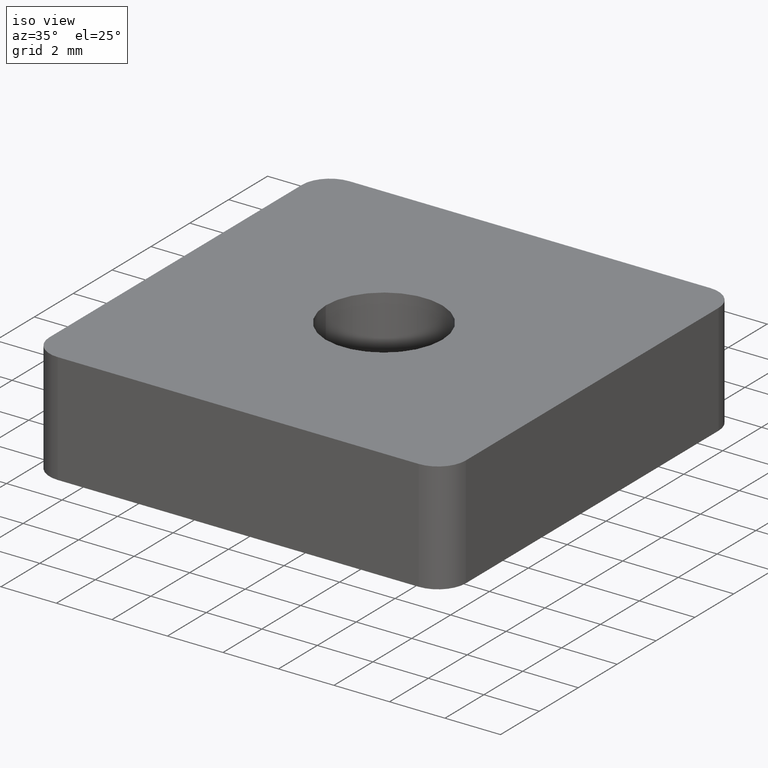
[diagram: clean part render]
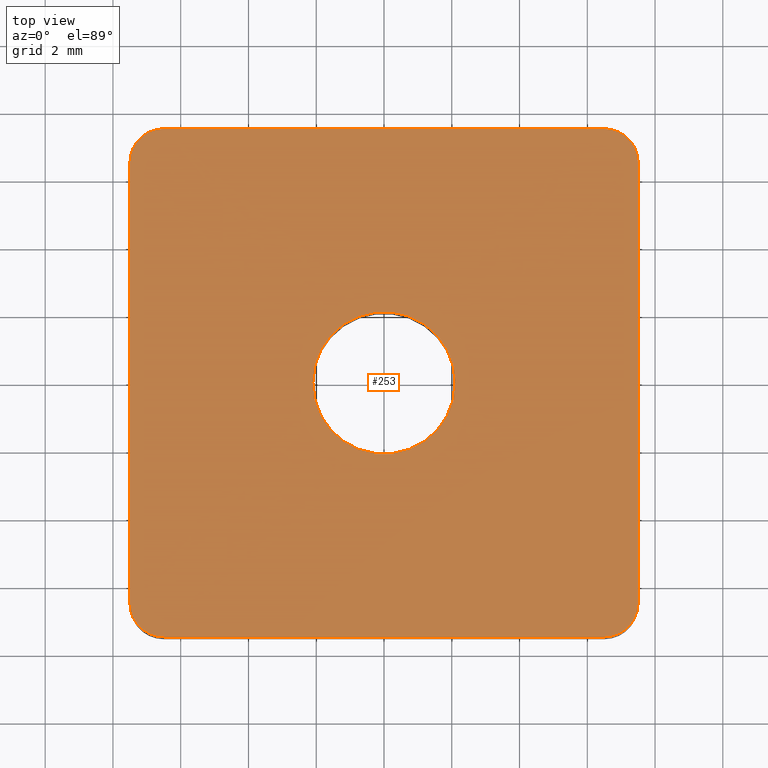
[diagram: tour spotlight — one face highlighted and labeled with its STEP entity id]
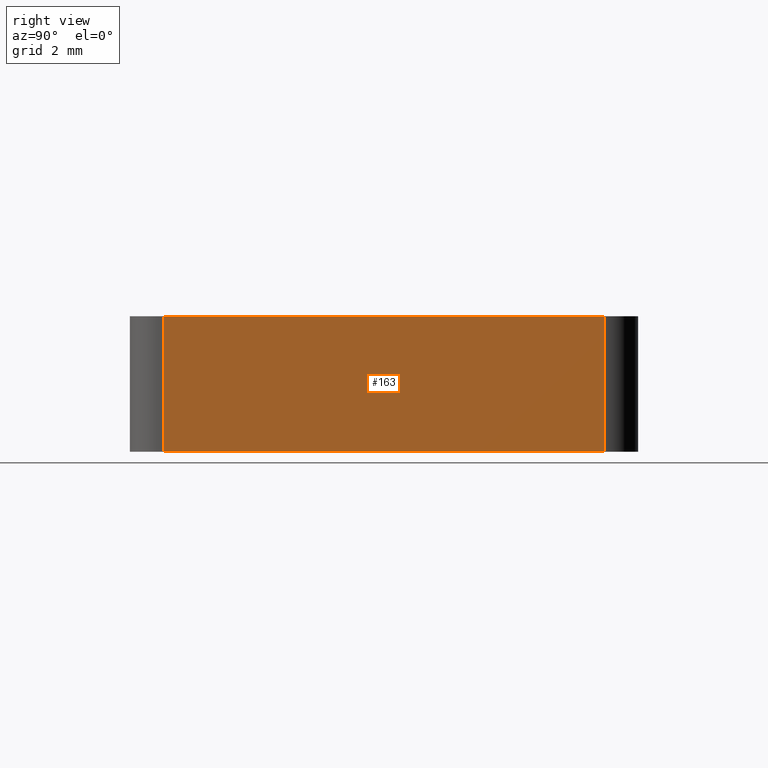
[diagram: tour spotlight — one face highlighted and labeled with its STEP entity id]
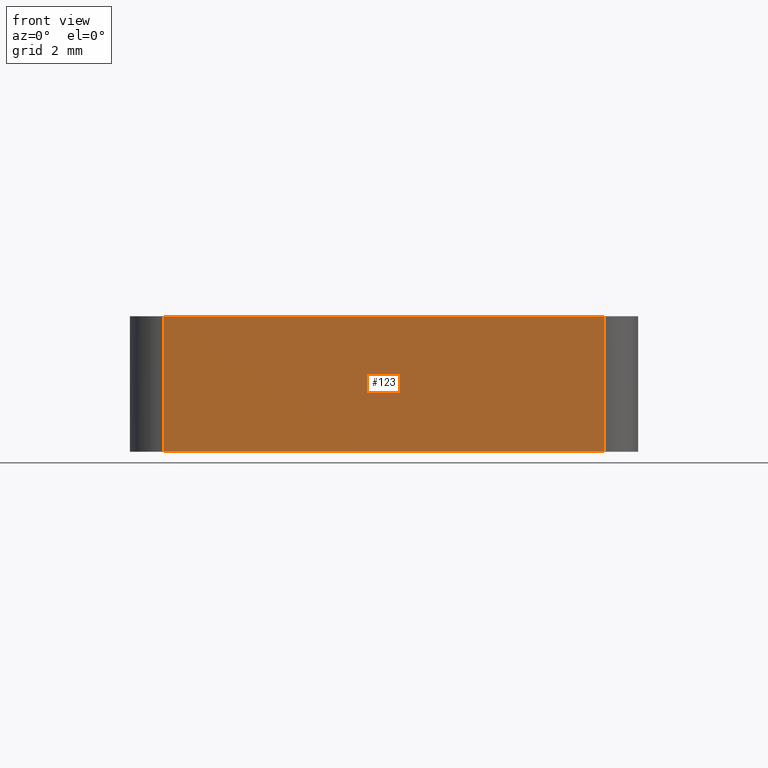
[diagram: tour spotlight — one face highlighted and labeled with its STEP entity id]
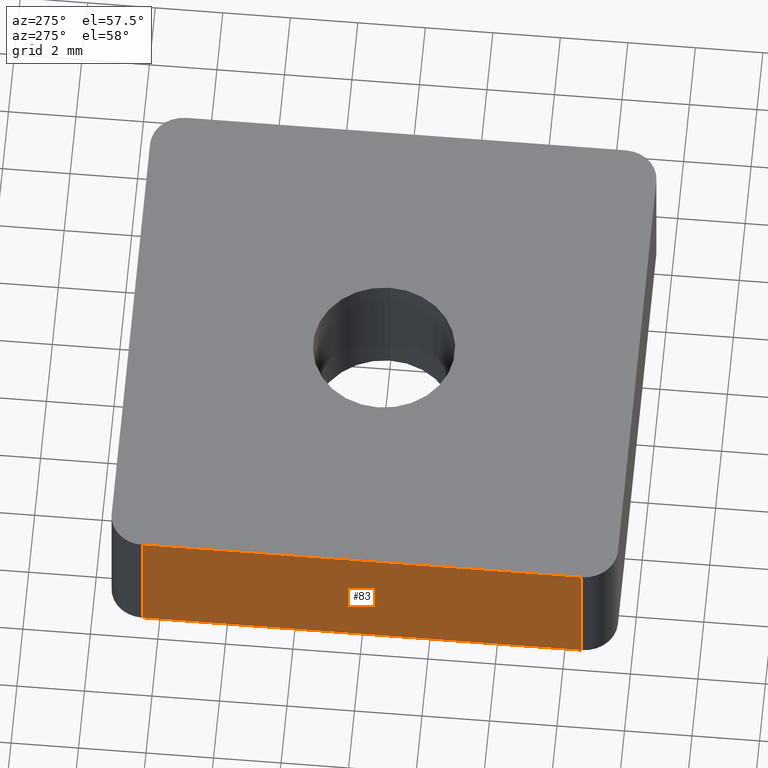
[diagram: tour spotlight — one face highlighted and labeled with its STEP entity id]
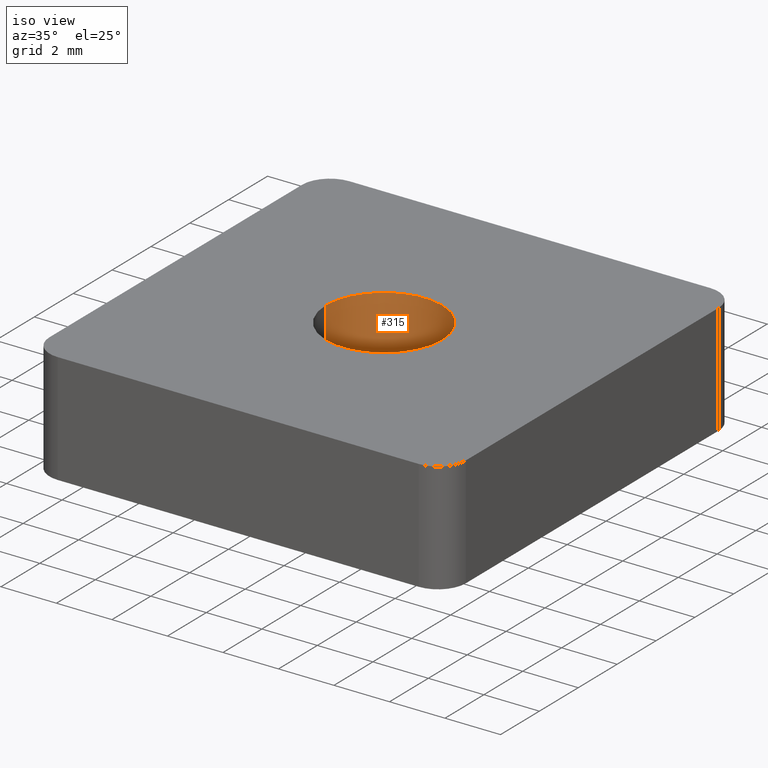
[diagram: tour spotlight — one face highlighted and labeled with its STEP entity id]
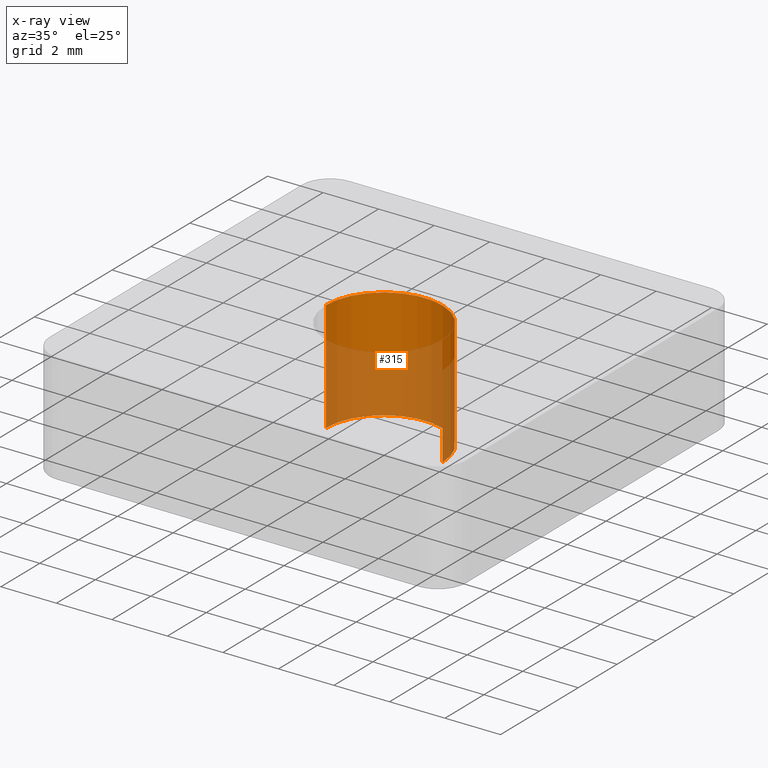
[diagram: x-ray of the same camera — body ghosted, this tour face saturated]
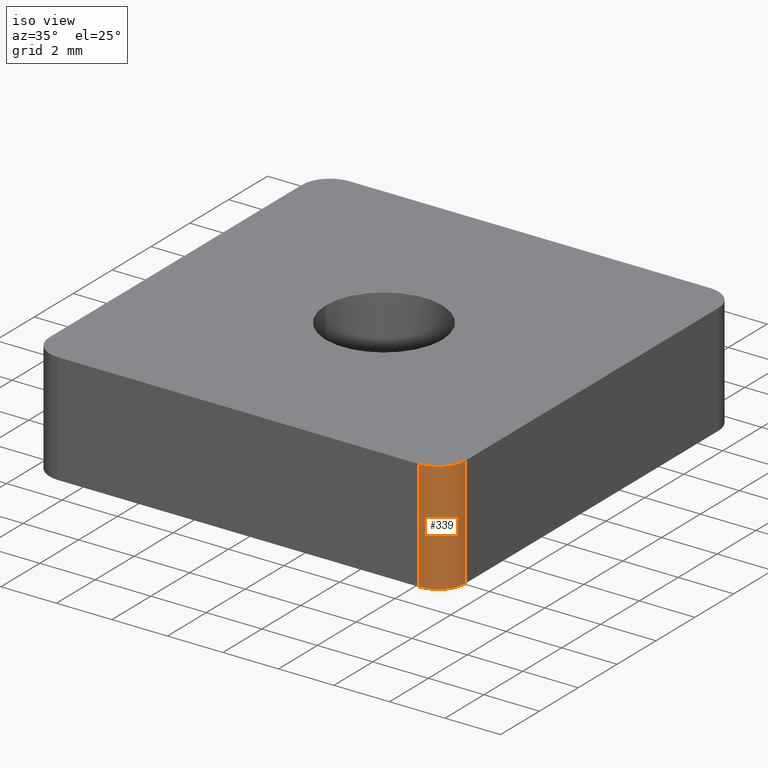
[diagram: tour spotlight — one face highlighted and labeled with its STEP entity id]
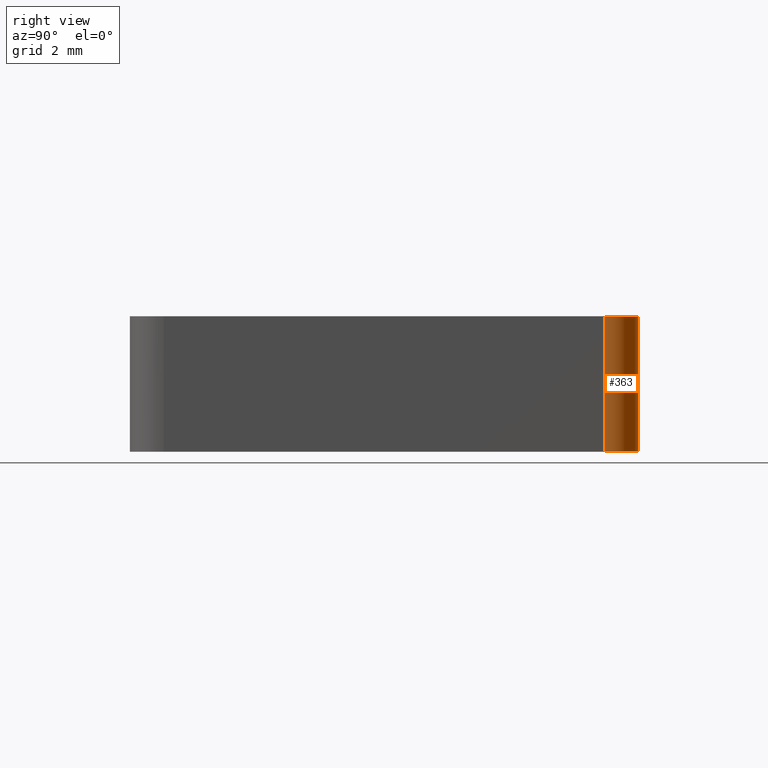
[diagram: tour spotlight — one face highlighted and labeled with its STEP entity id]
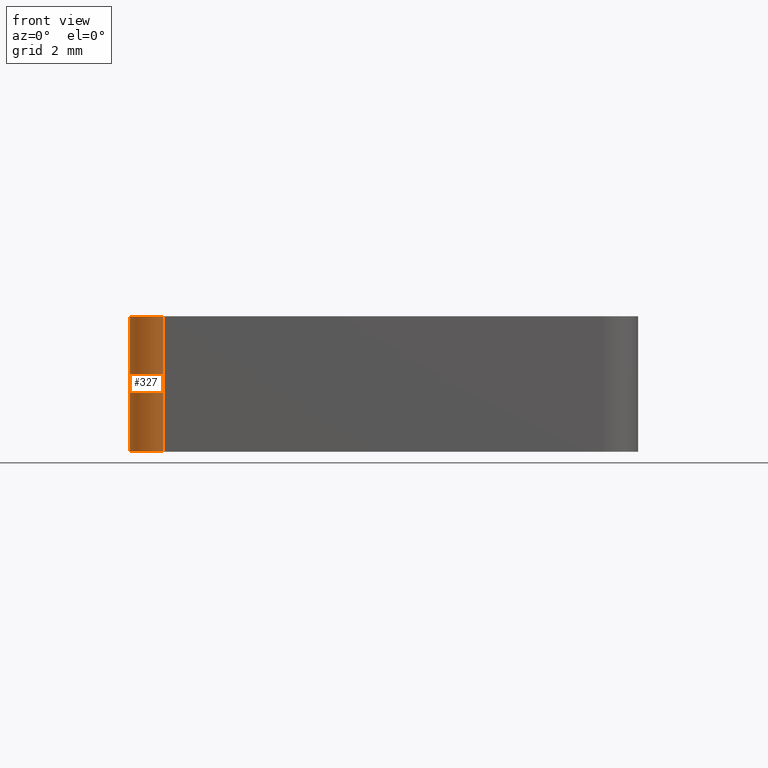
[diagram: tour spotlight — one face highlighted and labeled with its STEP entity id]
A machine part: a face-by-face anatomy tour. The part has 12 B-rep faces; the first image is the clean iso view, then the 8 largest visible faces are spotlighted one at a time (largest first), each with its STEP entity span.

Face 1 — top view, entity #253. In plain terms, the highlighted planar face has unit normal (0, 0, 1).
Definition (entity closure, byte-faithful):
#18=CARTESIAN_POINT('',(-2.100000000000001,0.0,1.110223E-016));
#19=VERTEX_POINT('',#18);
#26=CARTESIAN_POINT('',(2.100000000000001,0.0,1.110223E-016));
#27=VERTEX_POINT('',#26);
#28=CARTESIAN_POINT('',(-5.551115E-017,0.0,1.110223E-016));
#29=DIRECTION('',(0.0,0.0,1.0));
#30=DIRECTION('',(0.0,1.0,0.0));
#31=AXIS2_PLACEMENT_3D('',#28,#29,#30);
#32=CIRCLE('',#31,2.099999999999997);
#33=EDGE_CURVE('',#19,#27,#32,.T.);
#49=CARTESIAN_POINT('',(-7.500000000000000,6.500000000000011,1.110223E-016));
#50=VERTEX_POINT('',#49);
#51=CARTESIAN_POINT('',(-7.500000000000000,-6.499999999999979,1.110223E-016));
#52=VERTEX_POINT('',#51);
#53=CARTESIAN_POINT('',(-7.500000000000000,6.500000000000011,1.110223E-016));
#54=DIRECTION('',(0.0,-1.0,0.0));
#55=VECTOR('',#54,12.999999999999989);
#56=LINE('',#53,#55);
#57=EDGE_CURVE('',#50,#52,#56,.T.);
#99=CARTESIAN_POINT('',(6.499999999999993,-7.500000000000000,1.110223E-016));
#100=VERTEX_POINT('',#99);
#107=CARTESIAN_POINT('',(-6.500000000000000,-7.500000000000000,1.110223E-016));
#108=VERTEX_POINT('',#107);
#109=CARTESIAN_POINT('',(-6.500000000000000,-7.500000000000000,1.110223E-016));
#110=DIRECTION('',(1.0,0.0,0.0));
#111=VECTOR('',#110,12.999999999999993);
#112=LINE('',#109,#111);
#113=EDGE_CURVE('',#108,#100,#112,.T.);
#139=CARTESIAN_POINT('',(7.499999999999993,6.500000000000011,1.110223E-016));
#140=VERTEX_POINT('',#139);
#147=CARTESIAN_POINT('',(7.499999999999993,-6.499999999999979,1.110223E-016));
#148=VERTEX_POINT('',#147);
#149=CARTESIAN_POINT('',(7.499999999999993,-6.499999999999979,1.110223E-016));
#150=DIRECTION('',(0.0,1.0,0.0));
#151=VECTOR('',#150,12.999999999999989);
#152=LINE('',#149,#151);
#153=EDGE_CURVE('',#148,#140,#152,.T.);
#169=CARTESIAN_POINT('',(6.499999999999993,7.500000000000011,1.110223E-016));
#170=VERTEX_POINT('',#169);
#171=CARTESIAN_POINT('',(-6.500000000000000,7.500000000000011,1.110223E-016));
#172=VERTEX_POINT('',#171);
#173=CARTESIAN_POINT('',(6.499999999999993,7.500000000000011,1.110223E-016));
#174=DIRECTION('',(-1.0,0.0,0.0));
#175=VECTOR('',#174,12.999999999999993);
#176=LINE('',#173,#175);
#177=EDGE_CURVE('',#170,#172,#176,.T.);
#204=CARTESIAN_POINT('',(-8.250000000000000,-8.250000000000000,1.110223E-016));
#205=DIRECTION('',(0.0,0.0,1.0));
#206=DIRECTION('',(1.0,0.0,0.0));
#207=AXIS2_PLACEMENT_3D('',#204,#205,#206);
#208=PLANE('',#207);
#209=ORIENTED_EDGE('',*,*,#153,.T.);
#210=CARTESIAN_POINT('',(6.499999999999993,6.500000000000011,1.110223E-016));
#211=DIRECTION('',(0.0,0.0,1.0));
#212=DIRECTION('',(1.0,0.0,0.0));
#213=AXIS2_PLACEMENT_3D('',#210,#211,#212);
#214=CIRCLE('',#213,1.000000000000001);
#215=EDGE_CURVE('',#140,#170,#214,.T.);
#216=ORIENTED_EDGE('',*,*,#215,.T.);
#217=ORIENTED_EDGE('',*,*,#177,.T.);
#218=CARTESIAN_POINT('',(-6.500000000000000,6.500000000000011,1.110223E-016));
#219=DIRECTION('',(0.0,0.0,1.0));
#220=DIRECTION('',(1.0,0.0,0.0));
#221=AXIS2_PLACEMENT_3D('',#218,#219,#220);
#222=CIRCLE('',#221,1.000000000000001);
#223=EDGE_CURVE('',#172,#50,#222,.T.);
#224=ORIENTED_EDGE('',*,*,#223,.T.);
#225=ORIENTED_EDGE('',*,*,#57,.T.);
#226=CARTESIAN_POINT('',(-6.500000000000000,-6.499999999999979,1.110223E-016));
#227=DIRECTION('',(0.0,0.0,1.0));
#228=DIRECTION('',(1.0,0.0,0.0));
#229=AXIS2_PLACEMENT_3D('',#226,#227,#228);
#230=CIRCLE('',#229,1.000000000000001);
#231=EDGE_CURVE('',#52,#108,#230,.T.);
#232=ORIENTED_EDGE('',*,*,#231,.T.);
#233=ORIENTED_EDGE('',*,*,#113,.T.);
#234=CARTESIAN_POINT('',(6.499999999999993,-6.499999999999979,1.110223E-016));
#235=DIRECTION('',(0.0,0.0,1.0));
#236=DIRECTION('',(1.0,0.0,0.0));
#237=AXIS2_PLACEMENT_3D('',#234,#235,#236);
#238=CIRCLE('',#237,1.000000000000001);
#239=EDGE_CURVE('',#100,#148,#238,.T.);
#240=ORIENTED_EDGE('',*,*,#239,.T.);
#241=EDGE_LOOP('',(#209,#216,#217,#224,#225,#232,#233,#240));
#242=FACE_OUTER_BOUND('',#241,.T.);
#243=CARTESIAN_POINT('',(-5.551115E-017,0.0,1.110223E-016));
#244=DIRECTION('',(0.0,0.0,1.0));
#245=DIRECTION('',(0.0,1.0,0.0));
#246=AXIS2_PLACEMENT_3D('',#243,#244,#245);
#247=CIRCLE('',#246,2.099999999999997);
#248=EDGE_CURVE('',#27,#19,#247,.T.);
#249=ORIENTED_EDGE('',*,*,#248,.F.);
#250=ORIENTED_EDGE('',*,*,#33,.F.);
#251=EDGE_LOOP('',(#249,#250));
#252=FACE_BOUND('',#251,.T.);
#253=ADVANCED_FACE('',(#242,#252),#208,.T.);

Face 2 — right view, entity #163. In plain terms, the highlighted planar face has unit normal (-1, 0, 0).
Definition (entity closure, byte-faithful):
#124=CARTESIAN_POINT('',(7.499999999999993,-7.149999999999977,-4.200000000000000));
#125=DIRECTION('',(-1.0,0.0,0.0));
#126=DIRECTION('',(0.0,0.0,1.0));
#127=AXIS2_PLACEMENT_3D('',#124,#125,#126);
#128=PLANE('',#127);
#129=CARTESIAN_POINT('',(7.499999999999993,-6.499999999999979,-4.0));
#130=VERTEX_POINT('',#129);
#131=CARTESIAN_POINT('',(7.499999999999993,6.500000000000011,-4.0));
#132=VERTEX_POINT('',#131);
#133=CARTESIAN_POINT('',(7.499999999999993,-6.499999999999979,-4.0));
#134=DIRECTION('',(0.0,1.0,0.0));
#135=VECTOR('',#134,12.999999999999989);
#136=LINE('',#133,#135);
#137=EDGE_CURVE('',#130,#132,#136,.T.);
#138=ORIENTED_EDGE('',*,*,#137,.T.);
#139=CARTESIAN_POINT('',(7.499999999999993,6.500000000000011,1.110223E-016));
#140=VERTEX_POINT('',#139);
#141=CARTESIAN_POINT('',(7.499999999999993,6.500000000000011,-4.0));
#142=DIRECTION('',(0.0,0.0,1.0));
#143=VECTOR('',#142,4.0);
#144=LINE('',#141,#143);
#145=EDGE_CURVE('',#132,#140,#144,.T.);
#146=ORIENTED_EDGE('',*,*,#145,.T.);
#147=CARTESIAN_POINT('',(7.499999999999993,-6.499999999999979,1.110223E-016));
#148=VERTEX_POINT('',#147);
#149=CARTESIAN_POINT('',(7.499999999999993,-6.499999999999979,1.110223E-016));
#150=DIRECTION('',(0.0,1.0,0.0));
#151=VECTOR('',#150,12.999999999999989);
#152=LINE('',#149,#151);
#153=EDGE_CURVE('',#148,#140,#152,.T.);
#154=ORIENTED_EDGE('',*,*,#153,.F.);
#155=CARTESIAN_POINT('',(7.499999999999993,-6.499999999999979,1.110223E-016));
#156=DIRECTION('',(0.0,0.0,-1.0));
#157=VECTOR('',#156,4.0);
#158=LINE('',#155,#157);
#159=EDGE_CURVE('',#148,#130,#158,.T.);
#160=ORIENTED_EDGE('',*,*,#159,.T.);
#161=EDGE_LOOP('',(#138,#146,#154,#160));
#162=FACE_OUTER_BOUND('',#161,.T.);
#163=ADVANCED_FACE('',(#162),#128,.F.);

Face 3 — front view, entity #123. In plain terms, the highlighted planar face has unit normal (0, 1, 0).
Definition (entity closure, byte-faithful):
#84=CARTESIAN_POINT('',(-7.149999999999999,-7.500000000000000,-4.200000000000000));
#85=DIRECTION('',(0.0,1.0,0.0));
#86=DIRECTION('',(0.0,0.0,1.0));
#87=AXIS2_PLACEMENT_3D('',#84,#85,#86);
#88=PLANE('',#87);
#89=CARTESIAN_POINT('',(-6.500000000000000,-7.500000000000000,-4.0));
#90=VERTEX_POINT('',#89);
#91=CARTESIAN_POINT('',(6.499999999999993,-7.500000000000000,-4.0));
#92=VERTEX_POINT('',#91);
#93=CARTESIAN_POINT('',(-6.500000000000000,-7.500000000000000,-4.0));
#94=DIRECTION('',(1.0,0.0,0.0));
#95=VECTOR('',#94,12.999999999999993);
#96=LINE('',#93,#95);
#97=EDGE_CURVE('',#90,#92,#96,.T.);
#98=ORIENTED_EDGE('',*,*,#97,.T.);
#99=CARTESIAN_POINT('',(6.499999999999993,-7.500000000000000,1.110223E-016));
#100=VERTEX_POINT('',#99);
#101=CARTESIAN_POINT('',(6.499999999999993,-7.500000000000000,-4.0));
#102=DIRECTION('',(0.0,0.0,1.0));
#103=VECTOR('',#102,4.0);
#104=LINE('',#101,#103);
#105=EDGE_CURVE('',#92,#100,#104,.T.);
#106=ORIENTED_EDGE('',*,*,#105,.T.);
#107=CARTESIAN_POINT('',(-6.500000000000000,-7.500000000000000,1.110223E-016));
#108=VERTEX_POINT('',#107);
#109=CARTESIAN_POINT('',(-6.500000000000000,-7.500000000000000,1.110223E-016));
#110=DIRECTION('',(1.0,0.0,0.0));
#111=VECTOR('',#110,12.999999999999993);
#112=LINE('',#109,#111);
#113=EDGE_CURVE('',#108,#100,#112,.T.);
#114=ORIENTED_EDGE('',*,*,#113,.F.);
#115=CARTESIAN_POINT('',(-6.500000000000000,-7.500000000000000,1.110223E-016));
#116=DIRECTION('',(0.0,0.0,-1.0));
#117=VECTOR('',#116,4.0);
#118=LINE('',#115,#117);
#119=EDGE_CURVE('',#108,#90,#118,.T.);
#120=ORIENTED_EDGE('',*,*,#119,.T.);
#121=EDGE_LOOP('',(#98,#106,#114,#120));
#122=FACE_OUTER_BOUND('',#121,.T.);
#123=ADVANCED_FACE('',(#122),#88,.F.);

Face 4 — auxiliary view, entity #83. In plain terms, the highlighted planar face has unit normal (1, 0, 0).
Definition (entity closure, byte-faithful):
#44=CARTESIAN_POINT('',(-7.500000000000000,-7.149999999999977,0.200000000000000));
#45=DIRECTION('',(1.0,0.0,0.0));
#46=DIRECTION('',(0.0,0.0,-1.0));
#47=AXIS2_PLACEMENT_3D('',#44,#45,#46);
#48=PLANE('',#47);
#49=CARTESIAN_POINT('',(-7.500000000000000,6.500000000000011,1.110223E-016));
#50=VERTEX_POINT('',#49);
#51=CARTESIAN_POINT('',(-7.500000000000000,-6.499999999999979,1.110223E-016));
#52=VERTEX_POINT('',#51);
#53=CARTESIAN_POINT('',(-7.500000000000000,6.500000000000011,1.110223E-016));
#54=DIRECTION('',(0.0,-1.0,0.0));
#55=VECTOR('',#54,12.999999999999989);
#56=LINE('',#53,#55);
#57=EDGE_CURVE('',#50,#52,#56,.T.);
#58=ORIENTED_EDGE('',*,*,#57,.F.);
#59=CARTESIAN_POINT('',(-7.500000000000000,6.500000000000011,-4.0));
#60=VERTEX_POINT('',#59);
#61=CARTESIAN_POINT('',(-7.500000000000000,6.500000000000011,1.110223E-016));
#62=DIRECTION('',(0.0,0.0,-1.0));
#63=VECTOR('',#62,4.0);
#64=LINE('',#61,#63);
#65=EDGE_CURVE('',#50,#60,#64,.T.);
#66=ORIENTED_EDGE('',*,*,#65,.T.);
#67=CARTESIAN_POINT('',(-7.500000000000000,-6.499999999999979,-4.0));
#68=VERTEX_POINT('',#67);
#69=CARTESIAN_POINT('',(-7.500000000000000,6.500000000000011,-4.0));
#70=DIRECTION('',(0.0,-1.0,0.0));
#71=VECTOR('',#70,12.999999999999989);
#72=LINE('',#69,#71);
#73=EDGE_CURVE('',#60,#68,#72,.T.);
#74=ORIENTED_EDGE('',*,*,#73,.T.);
#75=CARTESIAN_POINT('',(-7.500000000000000,-6.499999999999979,-4.0));
#76=DIRECTION('',(0.0,0.0,1.0));
#77=VECTOR('',#76,4.0);
#78=LINE('',#75,#77);
#79=EDGE_CURVE('',#68,#52,#78,.T.);
#80=ORIENTED_EDGE('',*,*,#79,.T.);
#81=EDGE_LOOP('',(#58,#66,#74,#80));
#82=FACE_OUTER_BOUND('',#81,.T.);
#83=ADVANCED_FACE('',(#82),#48,.F.);

Face 5 — iso view, entity #315. An x-ray twin of the same camera follows (body ghosted, this face saturated) — the face is partly hidden behind the body. In plain terms, the highlighted cylindrical surface (partial cylindrical patch) has radius 2.1 mm, axis along (0, 0, 1).
Definition (entity closure, byte-faithful):
#7=CARTESIAN_POINT('',(-2.100000000000001,0.0,-4.0));
#8=VERTEX_POINT('',#7);
#9=CARTESIAN_POINT('',(2.100000000000001,0.0,-4.0));
#10=VERTEX_POINT('',#9);
#18=CARTESIAN_POINT('',(-2.100000000000001,0.0,1.110223E-016));
#19=VERTEX_POINT('',#18);
#20=CARTESIAN_POINT('',(-2.100000000000001,0.0,-4.0));
#21=DIRECTION('',(0.0,0.0,1.0));
#22=VECTOR('',#21,4.0);
#23=LINE('',#20,#22);
#24=EDGE_CURVE('',#8,#19,#23,.T.);
#26=CARTESIAN_POINT('',(2.100000000000001,0.0,1.110223E-016));
#27=VERTEX_POINT('',#26);
#35=CARTESIAN_POINT('',(2.100000000000001,0.0,-4.0));
#36=DIRECTION('',(0.0,0.0,1.0));
#37=VECTOR('',#36,4.0);
#38=LINE('',#35,#37);
#39=EDGE_CURVE('',#10,#27,#38,.T.);
#243=CARTESIAN_POINT('',(-5.551115E-017,0.0,1.110223E-016));
#244=DIRECTION('',(0.0,0.0,1.0));
#245=DIRECTION('',(0.0,1.0,0.0));
#246=AXIS2_PLACEMENT_3D('',#243,#244,#245);
#247=CIRCLE('',#246,2.099999999999997);
#248=EDGE_CURVE('',#27,#19,#247,.T.);
#293=CARTESIAN_POINT('',(-5.551115E-017,0.0,-4.0));
#294=DIRECTION('',(0.0,0.0,1.0));
#295=DIRECTION('',(1.0,0.0,0.0));
#296=AXIS2_PLACEMENT_3D('',#293,#294,#295);
#297=CIRCLE('',#296,2.099999999999997);
#298=EDGE_CURVE('',#10,#8,#297,.T.);
#304=CARTESIAN_POINT('',(-5.551115E-017,7.105427E-015,-4.000000010000001));
#305=DIRECTION('',(0.0,0.0,1.0));
#306=DIRECTION('',(0.0,-1.0,0.0));
#307=AXIS2_PLACEMENT_3D('',#304,#305,#306);
#308=CYLINDRICAL_SURFACE('',#307,2.099999999999997);
#309=ORIENTED_EDGE('',*,*,#24,.F.);
#310=ORIENTED_EDGE('',*,*,#298,.F.);
#311=ORIENTED_EDGE('',*,*,#39,.T.);
#312=ORIENTED_EDGE('',*,*,#248,.T.);
#313=EDGE_LOOP('',(#309,#310,#311,#312));
#314=FACE_OUTER_BOUND('',#313,.T.);
#315=ADVANCED_FACE('',(#314),#308,.F.);

Face 6 — iso view, entity #339. In plain terms, the highlighted cylindrical surface (edge-blend (fillet) strip) has radius 1 mm, axis along (0, 0, -1).
Definition (entity closure, byte-faithful):
#91=CARTESIAN_POINT('',(6.499999999999993,-7.500000000000000,-4.0));
#92=VERTEX_POINT('',#91);
#99=CARTESIAN_POINT('',(6.499999999999993,-7.500000000000000,1.110223E-016));
#100=VERTEX_POINT('',#99);
#101=CARTESIAN_POINT('',(6.499999999999993,-7.500000000000000,-4.0));
#102=DIRECTION('',(0.0,0.0,1.0));
#103=VECTOR('',#102,4.0);
#104=LINE('',#101,#103);
#105=EDGE_CURVE('',#92,#100,#104,.T.);
#129=CARTESIAN_POINT('',(7.499999999999993,-6.499999999999979,-4.0));
#130=VERTEX_POINT('',#129);
#147=CARTESIAN_POINT('',(7.499999999999993,-6.499999999999979,1.110223E-016));
#148=VERTEX_POINT('',#147);
#155=CARTESIAN_POINT('',(7.499999999999993,-6.499999999999979,1.110223E-016));
#156=DIRECTION('',(0.0,0.0,-1.0));
#157=VECTOR('',#156,4.0);
#158=LINE('',#155,#157);
#159=EDGE_CURVE('',#148,#130,#158,.T.);
#234=CARTESIAN_POINT('',(6.499999999999993,-6.499999999999979,1.110223E-016));
#235=DIRECTION('',(0.0,0.0,1.0));
#236=DIRECTION('',(1.0,0.0,0.0));
#237=AXIS2_PLACEMENT_3D('',#234,#235,#236);
#238=CIRCLE('',#237,1.000000000000001);
#239=EDGE_CURVE('',#100,#148,#238,.T.);
#268=CARTESIAN_POINT('',(6.499999999999993,-6.499999999999979,-4.0));
#269=DIRECTION('',(0.0,0.0,-1.0));
#270=DIRECTION('',(1.0,0.0,0.0));
#271=AXIS2_PLACEMENT_3D('',#268,#269,#270);
#272=CIRCLE('',#271,1.000000000000001);
#273=EDGE_CURVE('',#130,#92,#272,.T.);
#328=CARTESIAN_POINT('',(6.499999999999993,-6.499999999999979,0.000000010000000));
#329=DIRECTION('',(0.0,0.0,-1.0));
#330=DIRECTION('',(-1.0,0.0,0.0));
#331=AXIS2_PLACEMENT_3D('',#328,#329,#330);
#332=CYLINDRICAL_SURFACE('',#331,1.000000000000001);
#333=ORIENTED_EDGE('',*,*,#239,.F.);
#334=ORIENTED_EDGE('',*,*,#105,.F.);
#335=ORIENTED_EDGE('',*,*,#273,.F.);
#336=ORIENTED_EDGE('',*,*,#159,.F.);
#337=EDGE_LOOP('',(#333,#334,#335,#336));
#338=FACE_OUTER_BOUND('',#337,.T.);
#339=ADVANCED_FACE('',(#338),#332,.T.);

Face 7 — right view, entity #363. In plain terms, the highlighted cylindrical surface (edge-blend (fillet) strip) has radius 1 mm, axis along (0, 0, -1).
Definition (entity closure, byte-faithful):
#131=CARTESIAN_POINT('',(7.499999999999993,6.500000000000011,-4.0));
#132=VERTEX_POINT('',#131);
#139=CARTESIAN_POINT('',(7.499999999999993,6.500000000000011,1.110223E-016));
#140=VERTEX_POINT('',#139);
#141=CARTESIAN_POINT('',(7.499999999999993,6.500000000000011,-4.0));
#142=DIRECTION('',(0.0,0.0,1.0));
#143=VECTOR('',#142,4.0);
#144=LINE('',#141,#143);
#145=EDGE_CURVE('',#132,#140,#144,.T.);
#169=CARTESIAN_POINT('',(6.499999999999993,7.500000000000011,1.110223E-016));
#170=VERTEX_POINT('',#169);
#179=CARTESIAN_POINT('',(6.499999999999993,7.500000000000011,-4.0));
#180=VERTEX_POINT('',#179);
#181=CARTESIAN_POINT('',(6.499999999999993,7.500000000000011,1.110223E-016));
#182=DIRECTION('',(0.0,0.0,-1.0));
#183=VECTOR('',#182,4.0);
#184=LINE('',#181,#183);
#185=EDGE_CURVE('',#170,#180,#184,.T.);
#210=CARTESIAN_POINT('',(6.499999999999993,6.500000000000011,1.110223E-016));
#211=DIRECTION('',(0.0,0.0,1.0));
#212=DIRECTION('',(1.0,0.0,0.0));
#213=AXIS2_PLACEMENT_3D('',#210,#211,#212);
#214=CIRCLE('',#213,1.000000000000001);
#215=EDGE_CURVE('',#140,#170,#214,.T.);
#260=CARTESIAN_POINT('',(6.499999999999993,6.500000000000011,-4.0));
#261=DIRECTION('',(0.0,0.0,-1.0));
#262=DIRECTION('',(1.0,0.0,0.0));
#263=AXIS2_PLACEMENT_3D('',#260,#261,#262);
#264=CIRCLE('',#263,1.000000000000001);
#265=EDGE_CURVE('',#180,#132,#264,.T.);
#352=CARTESIAN_POINT('',(6.499999999999993,6.500000000000011,0.000000010000000));
#353=DIRECTION('',(0.0,0.0,-1.0));
#354=DIRECTION('',(-1.0,0.0,0.0));
#355=AXIS2_PLACEMENT_3D('',#352,#353,#354);
#356=CYLINDRICAL_SURFACE('',#355,1.000000000000001);
#357=ORIENTED_EDGE('',*,*,#215,.F.);
#358=ORIENTED_EDGE('',*,*,#145,.F.);
#359=ORIENTED_EDGE('',*,*,#265,.F.);
#360=ORIENTED_EDGE('',*,*,#185,.F.);
#361=EDGE_LOOP('',(#357,#358,#359,#360));
#362=FACE_OUTER_BOUND('',#361,.T.);
#363=ADVANCED_FACE('',(#362),#356,.T.);

Face 8 — front view, entity #327. In plain terms, the highlighted cylindrical surface (edge-blend (fillet) strip) has radius 1 mm, axis along (0, 0, -1).
Definition (entity closure, byte-faithful):
#51=CARTESIAN_POINT('',(-7.500000000000000,-6.499999999999979,1.110223E-016));
#52=VERTEX_POINT('',#51);
#67=CARTESIAN_POINT('',(-7.500000000000000,-6.499999999999979,-4.0));
#68=VERTEX_POINT('',#67);
#75=CARTESIAN_POINT('',(-7.500000000000000,-6.499999999999979,-4.0));
#76=DIRECTION('',(0.0,0.0,1.0));
#77=VECTOR('',#76,4.0);
#78=LINE('',#75,#77);
#79=EDGE_CURVE('',#68,#52,#78,.T.);
#89=CARTESIAN_POINT('',(-6.500000000000000,-7.500000000000000,-4.0));
#90=VERTEX_POINT('',#89);
#107=CARTESIAN_POINT('',(-6.500000000000000,-7.500000000000000,1.110223E-016));
#108=VERTEX_POINT('',#107);
#115=CARTESIAN_POINT('',(-6.500000000000000,-7.500000000000000,1.110223E-016));
#116=DIRECTION('',(0.0,0.0,-1.0));
#117=VECTOR('',#116,4.0);
#118=LINE('',#115,#117);
#119=EDGE_CURVE('',#108,#90,#118,.T.);
#226=CARTESIAN_POINT('',(-6.500000000000000,-6.499999999999979,1.110223E-016));
#227=DIRECTION('',(0.0,0.0,1.0));
#228=DIRECTION('',(1.0,0.0,0.0));
#229=AXIS2_PLACEMENT_3D('',#226,#227,#228);
#230=CIRCLE('',#229,1.000000000000001);
#231=EDGE_CURVE('',#52,#108,#230,.T.);
#276=CARTESIAN_POINT('',(-6.500000000000000,-6.499999999999979,-4.0));
#277=DIRECTION('',(0.0,0.0,-1.0));
#278=DIRECTION('',(1.0,0.0,0.0));
#279=AXIS2_PLACEMENT_3D('',#276,#277,#278);
#280=CIRCLE('',#279,1.000000000000001);
#281=EDGE_CURVE('',#90,#68,#280,.T.);
#316=CARTESIAN_POINT('',(-6.499999999999993,-6.499999999999972,0.000000010000000));
#317=DIRECTION('',(0.0,0.0,-1.0));
#318=DIRECTION('',(0.707106781186547,0.707106781186548,0.0));
#319=AXIS2_PLACEMENT_3D('',#316,#317,#318);
#320=CYLINDRICAL_SURFACE('',#319,1.000000000000001);
#321=ORIENTED_EDGE('',*,*,#231,.F.);
#322=ORIENTED_EDGE('',*,*,#79,.F.);
#323=ORIENTED_EDGE('',*,*,#281,.F.);
#324=ORIENTED_EDGE('',*,*,#119,.F.);
#325=EDGE_LOOP('',(#321,#322,#323,#324));
#326=FACE_OUTER_BOUND('',#325,.T.);
#327=ADVANCED_FACE('',(#326),#320,.T.);